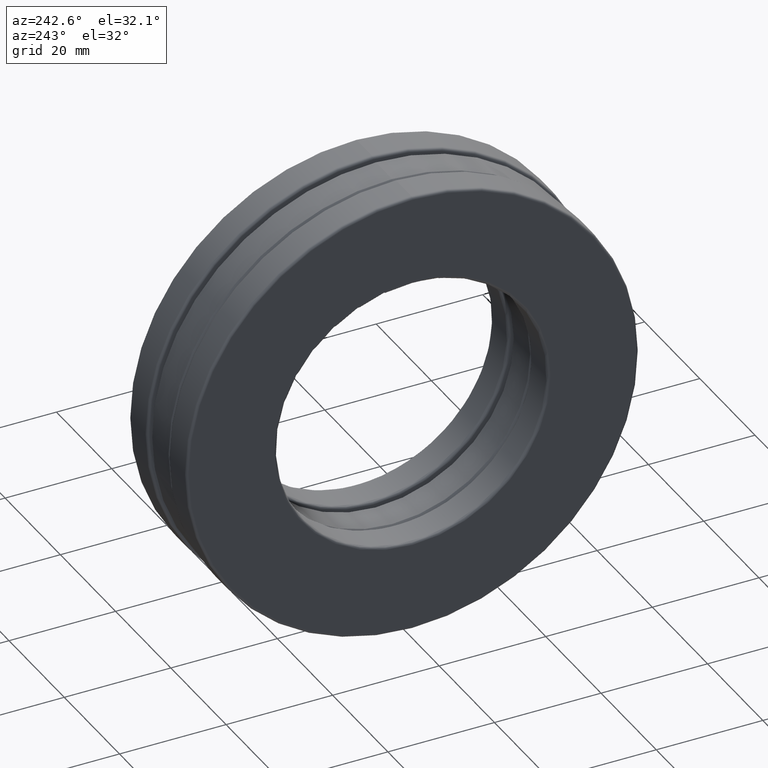
[diagram: clean part render]
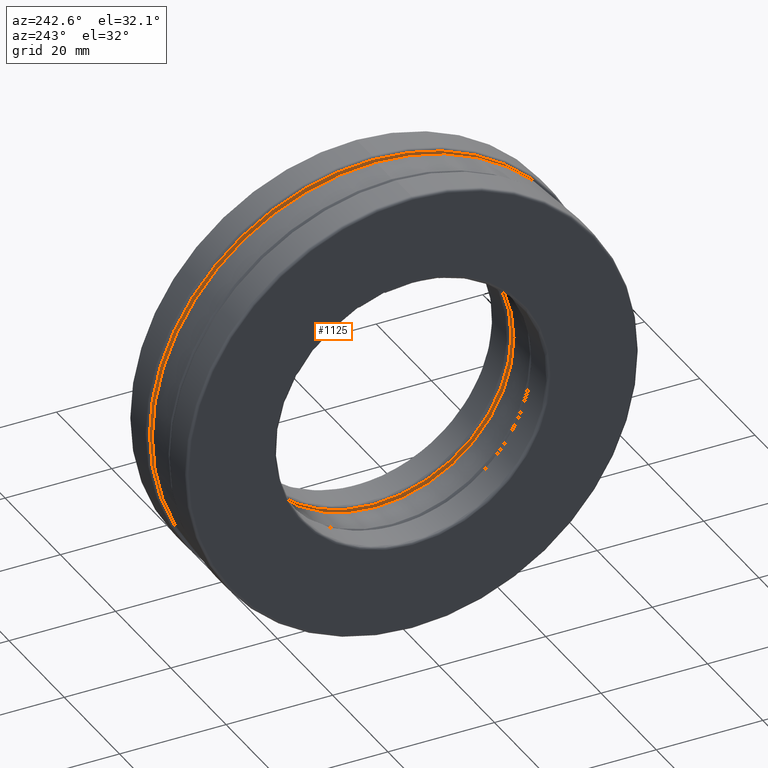
[diagram: same view with one face highlighted and labeled with its STEP entity id]
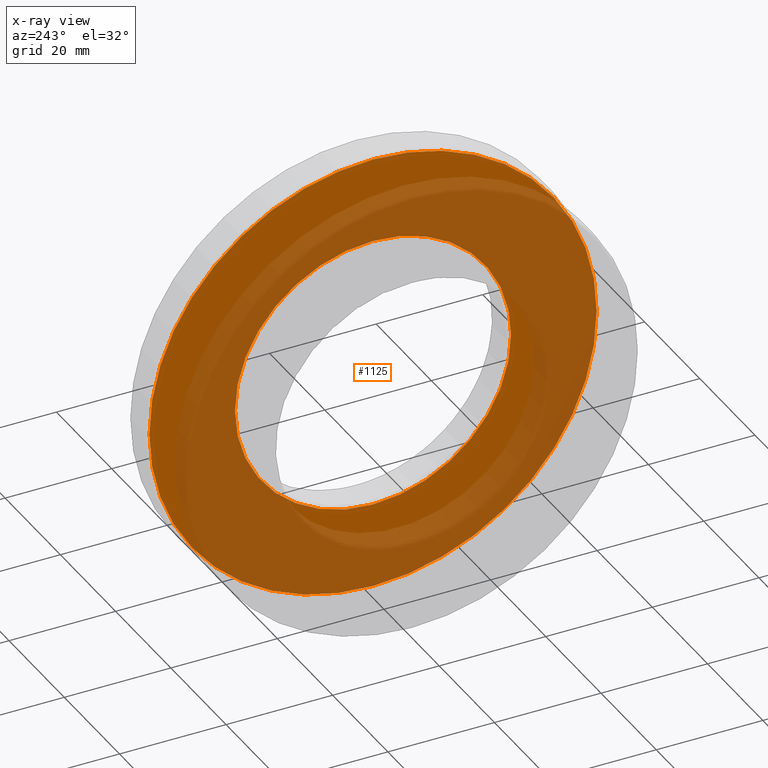
[diagram: x-ray of the same camera — body ghosted, the highlighted face saturated]
A machine part, auxiliary view. The second image highlights one B-rep face of the part: STEP entity #1125.
The next image is the same camera in x-ray: the body ghosted, the highlighted face saturated — about 69% of this face is hidden behind the body in this view.
In plain terms, the highlighted planar face has unit normal (1, 0, 0).
Its self-contained STEP definition (entity closure, byte-faithful):
#99 = CARTESIAN_POINT ( 'NONE',  ( 0.1559999999999999400, 0.0000000000000000000, 1.020000000000000000 ) ) ;
#126 = FACE_BOUND ( 'NONE', #306, .T. ) ;
#162 = AXIS2_PLACEMENT_3D ( 'NONE', #444, #318, #648 ) ;
#163 = ORIENTED_EDGE ( 'NONE', *, *, #469, .T. ) ;
#173 = VERTEX_POINT ( 'NONE', #750 ) ;
#306 = EDGE_LOOP ( 'NONE', ( #708 ) ) ;
#318 = DIRECTION ( 'NONE',  ( -1.000000000000000000, -0.0000000000000000000, -0.0000000000000000000 ) ) ;
#321 = AXIS2_PLACEMENT_3D ( 'NONE', #746, #853, #1340 ) ;
#357 = DIRECTION ( 'NONE',  ( -1.000000000000000000, -0.0000000000000000000, -0.0000000000000000000 ) ) ;
#370 = CIRCLE ( 'NONE', #162, 1.651875000000000400 ) ;
#444 = CARTESIAN_POINT ( 'NONE',  ( 0.1560000000000000000, 0.0000000000000000000, 0.0000000000000000000 ) ) ;
#469 = EDGE_CURVE ( 'NONE', #173, #173, #370, .T. ) ;
#507 = FACE_OUTER_BOUND ( 'NONE', #1190, .T. ) ;
#648 = DIRECTION ( 'NONE',  ( 0.0000000000000000000, 0.0000000000000000000, 1.000000000000000000 ) ) ;
#708 = ORIENTED_EDGE ( 'NONE', *, *, #1403, .F. ) ;
#746 = CARTESIAN_POINT ( 'NONE',  ( 0.1560000000000000000, -8.430628823177535400E-018, 0.0000000000000000000 ) ) ;
#750 = CARTESIAN_POINT ( 'NONE',  ( 0.1560000000000000000, 0.0000000000000000000, 1.651875000000000400 ) ) ;
#791 = DIRECTION ( 'NONE',  ( 0.0000000000000000000, 0.0000000000000000000, 1.000000000000000000 ) ) ;
#846 = VERTEX_POINT ( 'NONE', #99 ) ;
#853 = DIRECTION ( 'NONE',  ( 1.000000000000000000, 0.0000000000000000000, 0.0000000000000000000 ) ) ;
#875 = CIRCLE ( 'NONE', #1148, 1.020000000000000000 ) ;
#1017 = CARTESIAN_POINT ( 'NONE',  ( 0.1559999999999999400, 0.0000000000000000000, 0.0000000000000000000 ) ) ;
#1125 = ADVANCED_FACE ( 'NONE', ( #126, #507 ), #1436, .F. ) ;
#1148 = AXIS2_PLACEMENT_3D ( 'NONE', #1017, #357, #791 ) ;
#1190 = EDGE_LOOP ( 'NONE', ( #163 ) ) ;
#1340 = DIRECTION ( 'NONE',  ( 0.0000000000000000000, 0.0000000000000000000, -1.000000000000000000 ) ) ;
#1403 = EDGE_CURVE ( 'NONE', #846, #846, #875, .T. ) ;
#1436 = PLANE ( 'NONE',  #321 ) ;